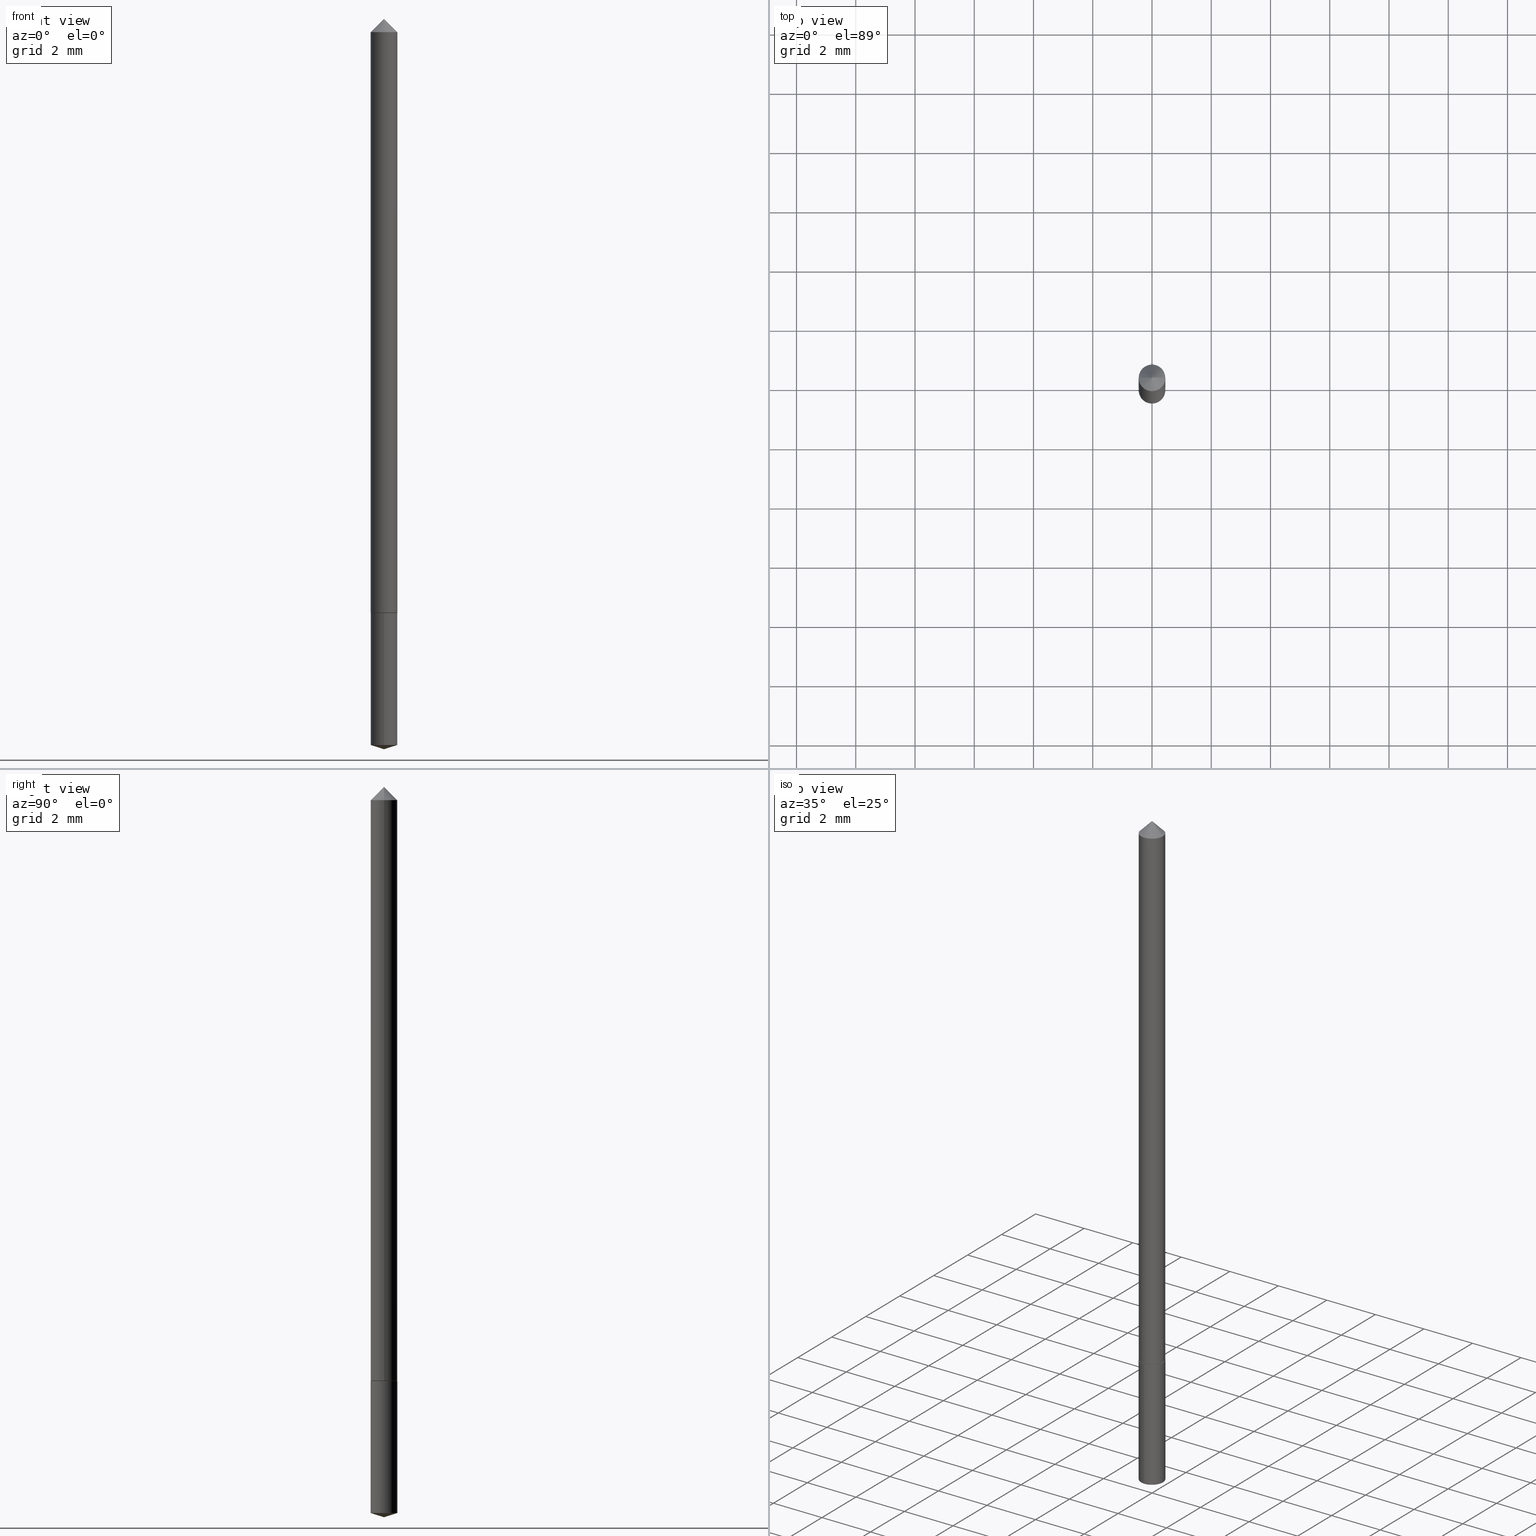
[diagram: canonical four-view strip — front | top / right | iso, engineering-drawing reading convention]
A machine part, canonical four-view strip (front | top / right | iso — engineering-drawing reading convention). The complete STEP part file that produces these views, byte-faithful:
ISO-10303-21;
HEADER;
FILE_DESCRIPTION (( 'STEP AP203' ),
    '1' );
FILE_NAME ('62017.STEP',
    '2024-04-23T04:45:31',
    ( '' ),
    ( '' ),
    'SwSTEP 2.0',
    'SolidWorks 2023',
    '' );
FILE_SCHEMA (( 'CONFIG_CONTROL_DESIGN' ));
ENDSEC;

DATA;
#1 = LINE ( 'NONE', #102, #354 ) ;
#2 = CALENDAR_DATE ( 2024, 23, 4 ) ;
#3 = CIRCLE ( 'NONE', #213, 0.01770000000000009760 ) ;
#4 = EDGE_CURVE ( 'NONE', #62, #194, #1, .T. ) ;
#5 = CC_DESIGN_SECURITY_CLASSIFICATION ( #168, ( #234 ) ) ;
#6 = MANIFOLD_SOLID_BREP ( 'Body-Move/Copy2[2]', #342 ) ;
#7 = CARTESIAN_POINT ( 'NONE',  ( 1.964200545127901750E-29, -2.804357811358814562E-15, -0.8031999999999999140 ) ) ;
#8 = DIRECTION ( 'NONE',  ( -0.7071067811865263675, 7.493145998870278430E-15, 0.7071067811865686670 ) ) ;
#9 = AXIS2_PLACEMENT_3D ( 'NONE', #83, #137, #327 ) ;
#10 = CIRCLE ( 'NONE', #155, 0.01720000000000009369 ) ;
#11 = DESIGN_CONTEXT ( 'detailed design', #93, 'design' ) ;
#12 = DIRECTION ( 'NONE',  ( -2.445436275745842788E-29, 3.491527924283732183E-15, 1.000000000000000000 ) ) ;
#13 = ADVANCED_FACE ( 'NONE', ( #46 ), #261, .F. ) ;
#14 = CARTESIAN_POINT ( 'NONE',  ( 1.964200545127901750E-29, -2.804357811358814562E-15, -0.8031999999999999140 ) ) ;
#15 = DIRECTION ( 'NONE',  ( 1.000000000000000000, 0.000000000000000000, 0.000000000000000000 ) ) ;
#16 = DIRECTION ( 'NONE',  ( 1.000000000000000000, -6.982962677686261189E-15, 0.000000000000000000 ) ) ;
#17 = CIRCLE ( 'NONE', #145, 0.01770000000000000046 ) ;
#18 = AXIS2_PLACEMENT_3D ( 'NONE', #350, #12, #211 ) ;
#19 = APPLICATION_PROTOCOL_DEFINITION ( 'international standard', 'config_control_design', 1994, #93 ) ;
#20 = CARTESIAN_POINT ( 'NONE',  ( 0.01770000000000005250, -1.235984393950472844E-16, 8.630832893158832123E-31 ) ) ;
#21 = EDGE_CURVE ( 'NONE', #116, #285, #210, .T. ) ;
#22 = PERSON_AND_ORGANIZATION ( #220, #260 ) ;
#23 = DIRECTION ( 'NONE',  ( 6.776566513254251038E-15, 0.9537169507482278208, 0.3007057995042699550 ) ) ;
#24 = EDGE_CURVE ( 'NONE', #252, #196, #82, .T. ) ;
#25 = PERSON_AND_ORGANIZATION_ROLE ( 'design_supplier' ) ;
#26 = DIRECTION ( 'NONE',  ( -2.445436275745842788E-29, 3.491527924283732183E-15, 1.000000000000000000 ) ) ;
#27 = CIRCLE ( 'NONE', #41, 0.01770000000000000392 ) ;
#28 = ORIENTED_EDGE ( 'NONE', *, *, #227, .T. ) ;
#29 = CARTESIAN_POINT ( 'NONE',  ( 1.964200545127901750E-29, -2.804357811358814562E-15, -0.8031999999999999140 ) ) ;
#30 = ORIENTED_EDGE ( 'NONE', *, *, #259, .T. ) ;
#31 = VERTEX_POINT ( 'NONE', #243 ) ;
#32 = ORIENTED_EDGE ( 'NONE', *, *, #197, .T. ) ;
#33 = AXIS2_PLACEMENT_3D ( 'NONE', #97, #291, #266 ) ;
#34 = ORIENTED_EDGE ( 'NONE', *, *, #72, .T. ) ;
#35 = DIRECTION ( 'NONE',  ( -2.445468806185136597E-29, 3.491481338843145583E-15, 1.000000000000000000 ) ) ;
#36 = PRODUCT_RELATED_PRODUCT_CATEGORY ( 'detail', '', ( #253 ) ) ;
#37 = DIRECTION ( 'NONE',  ( -2.445436275745842788E-29, 3.491527924283732183E-15, 1.000000000000000000 ) ) ;
#38 = LINE ( 'NONE', #204, #122 ) ;
#39 = CARTESIAN_POINT ( 'NONE',  ( 7.642090019328600035E-31, -1.091087918388489897E-16, -0.03125000000000020123 ) ) ;
#40 = CARTESIAN_POINT ( 'NONE',  ( 2.393421591865859803E-29, -3.417188039338808911E-15, -0.9787192114368419293 ) ) ;
#41 = AXIS2_PLACEMENT_3D ( 'NONE', #39, #188, #318 ) ;
#42 = LOCAL_TIME ( 0, 45, 31.00000000000000000, #206 ) ;
#43 = LENGTH_MEASURE_WITH_UNIT ( LENGTH_MEASURE( 0.02539999999999999897 ), #345 );
#44 = DIMENSIONAL_EXPONENTS ( 1.000000000000000000, 0.000000000000000000, 0.000000000000000000, 0.000000000000000000, 0.000000000000000000, 0.000000000000000000, 0.000000000000000000 ) ;
#45 = DIRECTION ( 'NONE',  ( 1.000000000000000000, -6.982962677686265922E-15, 0.000000000000000000 ) ) ;
#46 = FACE_OUTER_BOUND ( 'NONE', #362, .T. ) ;
#47 = PERSON_AND_ORGANIZATION_ROLE ( 'design_owner' ) ;
#48 = APPLICATION_CONTEXT ( 'configuration controlled 3d designs of mechanical parts and assemblies' ) ;
#49 = DIRECTION ( 'NONE',  ( -2.445468806185136597E-29, 3.491481338843145583E-15, 1.000000000000000000 ) ) ;
#50 = AXIS2_PLACEMENT_3D ( 'NONE', #347, #316, #175 ) ;
#51 = CARTESIAN_POINT ( 'NONE',  ( 0.01770000000000009760, -2.926210510084440245E-15, -0.8026999999999998581 ) ) ;
#52 = CC_DESIGN_PERSON_AND_ORGANIZATION_ASSIGNMENT ( #296, #104, ( #332 ) ) ;
#53 = DIRECTION ( 'NONE',  ( 1.000000000000000000, -6.982962677686261189E-15, 0.000000000000000000 ) ) ;
#54 = VERTEX_POINT ( 'NONE', #208 ) ;
#55 = DIRECTION ( 'NONE',  ( 6.982962677686265922E-15, 1.000000000000000000, -3.491527924283731788E-15 ) ) ;
#56 = VECTOR ( 'NONE', #66, 39.37007874015748143 ) ;
#57 = EDGE_LOOP ( 'NONE', ( #170, #120, #117 ) ) ;
#58 = AXIS2_PLACEMENT_3D ( 'NONE', #158, #135, #45 ) ;
#59 = CC_DESIGN_PERSON_AND_ORGANIZATION_ASSIGNMENT ( #162, #25, ( #234 ) ) ;
#60 = ORIENTED_EDGE ( 'NONE', *, *, #119, .T. ) ;
#61 = EDGE_LOOP ( 'NONE', ( #306, #34, #200, #268 ) ) ;
#62 = VERTEX_POINT ( 'NONE', #340 ) ;
#63 = DATE_AND_TIME ( #2, #294 ) ;
#64 = AXIS2_PLACEMENT_3D ( 'NONE', #298, #127, #15 ) ;
#65 = ADVANCED_FACE ( 'NONE', ( #292 ), #133, .T. ) ;
#66 = DIRECTION ( 'NONE',  ( 0.7071067811865263675, -2.468850131082035391E-15, 0.7071067811865686670 ) ) ;
#67 = SHAPE_DEFINITION_REPRESENTATION ( #91, #363 ) ;
#68 = FACE_OUTER_BOUND ( 'NONE', #358, .T. ) ;
#69 = ADVANCED_FACE ( 'NONE', ( #121 ), #203, .T. ) ;
#70 = DIRECTION ( 'NONE',  ( -2.445468806185136877E-29, 3.491481338843145188E-15, 1.000000000000000000 ) ) ;
#71 = PERSON_AND_ORGANIZATION_ROLE ( 'classification_officer' ) ;
#72 = EDGE_CURVE ( 'NONE', #153, #116, #100, .T. ) ;
#73 = CC_DESIGN_APPROVAL ( #339, ( #168 ) ) ;
#74 = CYLINDRICAL_SURFACE ( 'NONE', #290, 0.01770000000000005250 ) ;
#75 = DATE_AND_TIME ( #182, #42 ) ;
#76 = DIRECTION ( 'NONE',  ( -2.445468806185136597E-29, 3.491481338843145583E-15, 1.000000000000000000 ) ) ;
#77 = DATE_TIME_ROLE ( 'creation_date' ) ;
#78 = CIRCLE ( 'NONE', #33, 0.01770000000000009760 ) ;
#79 = LOCAL_TIME ( 0, 45, 31.00000000000000000, #244 ) ;
#80 = EDGE_CURVE ( 'NONE', #194, #54, #27, .T. ) ;
#81 = APPROVAL_STATUS ( 'not_yet_approved' ) ;
#82 = LINE ( 'NONE', #131, #56 ) ;
#83 = CARTESIAN_POINT ( 'NONE',  ( -9.386994967548581882E-28, 1.340250557840625593E-13, 38.38577874015747682 ) ) ;
#84 = ADVANCED_FACE ( 'NONE', ( #341 ), #181, .T. ) ;
#85 = CARTESIAN_POINT ( 'NONE',  ( 1.257660642295616485E-16, 0.01769999999999658305, -0.9787192114368419293 ) ) ;
#86 = AXIS2_PLACEMENT_3D ( 'NONE', #224, #305, #163 ) ;
#87 = CARTESIAN_POINT ( 'NONE',  ( 0.000000000000000000, 0.000000000000000000, 0.000000000000000000 ) ) ;
#88 = EDGE_LOOP ( 'NONE', ( #279, #360, #255, #231 ) ) ;
#89 = CARTESIAN_POINT ( 'NONE',  ( 2.393421591865859803E-29, -3.417188039338808911E-15, -0.9787192114368419293 ) ) ;
#90 = ORIENTED_EDGE ( 'NONE', *, *, #119, .F. ) ;
#91 = PRODUCT_DEFINITION_SHAPE ( 'NONE', 'NONE',  #332 ) ;
#92 = ORIENTED_EDGE ( 'NONE', *, *, #24, .F. ) ;
#93 = APPLICATION_CONTEXT ( 'configuration controlled 3d designs of mechanical parts and assemblies' ) ;
#94 = EDGE_LOOP ( 'NONE', ( #297, #230, #28, #331 ) ) ;
#95 = EDGE_CURVE ( 'NONE', #31, #54, #107, .T. ) ;
#96 = ADVANCED_FACE ( 'NONE', ( #68 ), #176, .T. ) ;
#97 = CARTESIAN_POINT ( 'NONE',  ( 1.962977810724808948E-29, -2.802612070689392664E-15, -0.8026999999999998581 ) ) ;
#98 = APPROVAL_PERSON_ORGANIZATION ( #322, #221, #132 ) ;
#99 = ADVANCED_FACE ( 'NONE', ( #150 ), #74, .T. ) ;
#100 = LINE ( 'NONE', #149, #183 ) ;
#101 = DIRECTION ( 'NONE',  ( -2.445436275745842788E-29, 3.491527924283732183E-15, 1.000000000000000000 ) ) ;
#102 = CARTESIAN_POINT ( 'NONE',  ( 0.01770000000000000392, -2.305396063994051445E-16, -0.03125000000000020123 ) ) ;
#103 = CALENDAR_DATE ( 2024, 23, 4 ) ;
#104 = PERSON_AND_ORGANIZATION_ROLE ( 'creator' ) ;
#105 = EDGE_CURVE ( 'NONE', #31, #196, #78, .T. ) ;
#106 = APPROVAL_ROLE ( '' ) ;
#107 = LINE ( 'NONE', #263, #172 ) ;
#108 = VECTOR ( 'NONE', #293, 39.37007874015748143 ) ;
#109 = CARTESIAN_POINT ( 'NONE',  ( -1.235984393950272671E-16, -0.01770000000000280377, -0.8031999999999999140 ) ) ;
#110 = DIRECTION ( 'NONE',  ( -6.659769872151625778E-15, -0.9537169507482258224, 0.3007057995042766163 ) ) ;
#111 = CARTESIAN_POINT ( 'NONE',  ( 1.962977810724808948E-29, -2.802612070689392664E-15, -0.8026999999999998581 ) ) ;
#112 = CONICAL_SURFACE ( 'NONE', #18, 124.8659371009137971, 1.265363707695888795 ) ;
#113 = CARTESIAN_POINT ( 'NONE',  ( 2.407042926216632524E-29, -3.436710935872477022E-15, -0.9842999999999999527 ) ) ;
#114 = ORIENTED_EDGE ( 'NONE', *, *, #144, .T. ) ;
#115 = EDGE_CURVE ( 'NONE', #329, #31, #38, .T. ) ;
#116 = VERTEX_POINT ( 'NONE', #238 ) ;
#117 = ORIENTED_EDGE ( 'NONE', *, *, #80, .T. ) ;
#118 = EDGE_LOOP ( 'NONE', ( #169, #330, #309 ) ) ;
#119 = EDGE_CURVE ( 'NONE', #256, #237, #356, .T. ) ;
#120 = ORIENTED_EDGE ( 'NONE', *, *, #4, .T. ) ;
#121 = FACE_OUTER_BOUND ( 'NONE', #88, .T. ) ;
#122 = VECTOR ( 'NONE', #8, 39.37007874015748143 ) ;
#123 = PERSON_AND_ORGANIZATION ( #220, #260 ) ;
#124 = DIRECTION ( 'NONE',  ( -6.982962677686265133E-15, -1.000000000000000000, 0.000000000000000000 ) ) ;
#125 = DIRECTION ( 'NONE',  ( 1.000000000000000000, -6.982962677686266711E-15, 4.876176775795935793E-29 ) ) ;
#126 = ADVANCED_FACE ( 'NONE', ( #217 ), #167, .T. ) ;
#127 = DIRECTION ( 'NONE',  ( 0.000000000000000000, 0.000000000000000000, 1.000000000000000000 ) ) ;
#128 = VECTOR ( 'NONE', #136, 39.37007874015748143 ) ;
#129 = APPLICATION_PROTOCOL_DEFINITION ( 'international standard', 'config_control_design', 1994, #48 ) ;
#130 = MANIFOLD_SOLID_BREP ( 'Body-Move/Copy2[1]', #361 ) ;
#131 = CARTESIAN_POINT ( 'NONE',  ( 0.01770000000000009760, -2.926210510084440245E-15, -0.8026999999999998581 ) ) ;
#132 = APPROVAL_ROLE ( '' ) ;
#133 = CONICAL_SURFACE ( 'NONE', #50, 0.01770000000000000392, 0.7853981633974452814 ) ;
#134 = FACE_OUTER_BOUND ( 'NONE', #333, .T. ) ;
#135 = DIRECTION ( 'NONE',  ( -2.445468806185136597E-29, 3.491481338843145583E-15, 1.000000000000000000 ) ) ;
#136 = DIRECTION ( 'NONE',  ( -2.445468806185136877E-29, 3.491481338843145188E-15, 1.000000000000000000 ) ) ;
#137 = DIRECTION ( 'NONE',  ( -2.445436275745842788E-29, 3.491527924283732183E-15, 1.000000000000000000 ) ) ;
#138 = DIRECTION ( 'NONE',  ( -6.982962677686265133E-15, -1.000000000000000000, 0.000000000000000000 ) ) ;
#139 = AXIS2_PLACEMENT_3D ( 'NONE', #14, #235, #209 ) ;
#140 =( GEOMETRIC_REPRESENTATION_CONTEXT ( 3 ) GLOBAL_UNCERTAINTY_ASSIGNED_CONTEXT ( ( #359 ) ) GLOBAL_UNIT_ASSIGNED_CONTEXT ( ( #154, #320, #264 ) ) REPRESENTATION_CONTEXT ( 'NONE', 'WORKASPACE' ) );
#141 = EDGE_LOOP ( 'NONE', ( #226, #201, #146, #92 ) ) ;
#142 = DIRECTION ( 'NONE',  ( -2.445468806185136597E-29, 3.491481338843145583E-15, 1.000000000000000000 ) ) ;
#143 = ORIENTED_EDGE ( 'NONE', *, *, #21, .T. ) ;
#144 = EDGE_CURVE ( 'NONE', #196, #31, #3, .T. ) ;
#145 = AXIS2_PLACEMENT_3D ( 'NONE', #89, #195, #223 ) ;
#146 = ORIENTED_EDGE ( 'NONE', *, *, #144, .F. ) ;
#147 = ORIENTED_EDGE ( 'NONE', *, *, #165, .F. ) ;
#148 = PERSON_AND_ORGANIZATION ( #220, #260 ) ;
#149 = CARTESIAN_POINT ( 'NONE',  ( 1.257660642295573590E-16, 0.01769999999999719714, -0.8031999999999999140 ) ) ;
#150 = FACE_OUTER_BOUND ( 'NONE', #94, .T. ) ;
#151 = VECTOR ( 'NONE', #110, 39.37007874015748143 ) ;
#152 = CIRCLE ( 'NONE', #265, 0.01770000000000000046 ) ;
#153 = VERTEX_POINT ( 'NONE', #85 ) ;
#154 =( CONVERSION_BASED_UNIT ( 'INCH', #43 ) LENGTH_UNIT ( ) NAMED_UNIT ( #44 ) );
#155 = AXIS2_PLACEMENT_3D ( 'NONE', #319, #76, #295 ) ;
#156 = ADVANCED_FACE ( 'NONE', ( #192 ), #300, .T. ) ;
#157 = CARTESIAN_POINT ( 'NONE',  ( 0.000000000000000000, 0.000000000000000000, 0.000000000000000000 ) ) ;
#158 = CARTESIAN_POINT ( 'NONE',  ( 7.642090019328600035E-31, -1.091087918388489897E-16, -0.03125000000000020123 ) ) ;
#159 = DIRECTION ( 'NONE',  ( 1.000000000000000000, -6.982962677686265922E-15, 4.876176775795935793E-29 ) ) ;
#160 = CARTESIAN_POINT ( 'NONE',  ( 1.964200545127901750E-29, -2.804357811358814562E-15, -0.8031999999999999140 ) ) ;
#161 = DIRECTION ( 'NONE',  ( 2.445436275745842508E-29, -3.491527924283731788E-15, -1.000000000000000000 ) ) ;
#162 = PERSON_AND_ORGANIZATION ( #220, #260 ) ;
#163 = DIRECTION ( 'NONE',  ( -1.000000000000000000, 6.982962677686265922E-15, 0.000000000000000000 ) ) ;
#164 = ORIENTED_EDGE ( 'NONE', *, *, #95, .T. ) ;
#165 = EDGE_CURVE ( 'NONE', #256, #153, #299, .T. ) ;
#166 = CARTESIAN_POINT ( 'NONE',  ( 1.964200545127901750E-29, -2.804357811358814562E-15, -0.8031999999999999140 ) ) ;
#167 = CONICAL_SURFACE ( 'NONE', #348, 0.01770000000000009760, 0.7853981633974184140 ) ;
#168 = SECURITY_CLASSIFICATION ( '', '', #248 ) ;
#169 = ORIENTED_EDGE ( 'NONE', *, *, #4, .F. ) ;
#170 = ORIENTED_EDGE ( 'NONE', *, *, #287, .F. ) ;
#171 = ORIENTED_EDGE ( 'NONE', *, *, #197, .F. ) ;
#172 = VECTOR ( 'NONE', #70, 39.37007874015748143 ) ;
#173 = CIRCLE ( 'NONE', #58, 0.01770000000000000392 ) ;
#174 = ORIENTED_EDGE ( 'NONE', *, *, #165, .T. ) ;
#175 = DIRECTION ( 'NONE',  ( -1.000000000000000000, 6.982962677686265922E-15, 0.000000000000000000 ) ) ;
#176 = CYLINDRICAL_SURFACE ( 'NONE', #249, 0.01770000000000000046 ) ;
#177 = COORDINATED_UNIVERSAL_TIME_OFFSET ( 5, 0, .BEHIND. ) ;
#178 = EDGE_CURVE ( 'NONE', #237, #285, #324, .T. ) ;
#179 = DIRECTION ( 'NONE',  ( -2.445468806185136597E-29, 3.491481338843145583E-15, 1.000000000000000000 ) ) ;
#180 = VECTOR ( 'NONE', #353, 39.37007874015748143 ) ;
#181 = CYLINDRICAL_SURFACE ( 'NONE', #191, 0.01770000000000000046 ) ;
#182 = CALENDAR_DATE ( 2024, 23, 4 ) ;
#183 = VECTOR ( 'NONE', #338, 39.37007874015748143 ) ;
#184 = LINE ( 'NONE', #267, #108 ) ;
#185 = CIRCLE ( 'NONE', #271, 0.01720000000000009369 ) ;
#186 = ADVANCED_FACE ( 'NONE', ( #272 ), #251, .F. ) ;
#187 = DIRECTION ( 'NONE',  ( -6.982962677686265133E-15, -1.000000000000000000, 0.000000000000000000 ) ) ;
#188 = DIRECTION ( 'NONE',  ( -2.445468806185136597E-29, 3.491481338843145583E-15, 1.000000000000000000 ) ) ;
#189 = DIRECTION ( 'NONE',  ( -2.445436275745842788E-29, 3.491527924283732183E-15, 1.000000000000000000 ) ) ;
#190 = LINE ( 'NONE', #20, #128 ) ;
#191 = AXIS2_PLACEMENT_3D ( 'NONE', #207, #101, #315 ) ;
#192 = FACE_OUTER_BOUND ( 'NONE', #118, .T. ) ;
#193 = DIRECTION ( 'NONE',  ( -2.445468806185136597E-29, 3.491481338843145583E-15, 1.000000000000000000 ) ) ;
#194 = VERTEX_POINT ( 'NONE', #328 ) ;
#195 = DIRECTION ( 'NONE',  ( -2.445436275745842788E-29, 3.491527924283732183E-15, 1.000000000000000000 ) ) ;
#196 = VERTEX_POINT ( 'NONE', #51 ) ;
#197 = EDGE_CURVE ( 'NONE', #153, #237, #17, .T. ) ;
#198 = AXIS2_PLACEMENT_3D ( 'NONE', #160, #161, #55 ) ;
#199 = LOCAL_TIME ( 0, 45, 31.00000000000000000, #232 ) ;
#200 = ORIENTED_EDGE ( 'NONE', *, *, #259, .F. ) ;
#201 = ORIENTED_EDGE ( 'NONE', *, *, #115, .T. ) ;
#202 = ORIENTED_EDGE ( 'NONE', *, *, #178, .T. ) ;
#203 = CONICAL_SURFACE ( 'NONE', #254, 0.01770000000000009760, 0.7853981633974184140 ) ;
#204 = CARTESIAN_POINT ( 'NONE',  ( -0.01770000000000009760, -2.676846006459854189E-15, -0.8026999999999998581 ) ) ;
#205 = DATE_AND_TIME ( #335, #199 ) ;
#206 = COORDINATED_UNIVERSAL_TIME_OFFSET ( 5, 0, .BEHIND. ) ;
#207 = CARTESIAN_POINT ( 'NONE',  ( 1.964200545127901750E-29, -2.804357811358814562E-15, -0.8031999999999999140 ) ) ;
#208 = CARTESIAN_POINT ( 'NONE',  ( -0.01770000000000000392, -1.330094367034580829E-15, -0.03125000000000020123 ) ) ;
#209 = DIRECTION ( 'NONE',  ( -6.982962677686265133E-15, -1.000000000000000000, 0.000000000000000000 ) ) ;
#210 = CIRCLE ( 'NONE', #139, 0.01770000000000000046 ) ;
#211 = DIRECTION ( 'NONE',  ( -6.982962677686265922E-15, -1.000000000000000000, 3.500519750498739931E-15 ) ) ;
#212 = COORDINATED_UNIVERSAL_TIME_OFFSET ( 5, 0, .BEHIND. ) ;
#213 = AXIS2_PLACEMENT_3D ( 'NONE', #111, #247, #53 ) ;
#214 = AXIS2_PLACEMENT_3D ( 'NONE', #40, #189, #187 ) ;
#215 = DIRECTION ( 'NONE',  ( 0.7071067811865453523, -7.319954787623248157E-15, -0.7071067811865496822 ) ) ;
#216 = MECHANICAL_CONTEXT ( 'NONE', #48, 'mechanical' ) ;
#217 = FACE_OUTER_BOUND ( 'NONE', #141, .T. ) ;
#218 = APPROVAL_DATE_TIME ( #304, #221 ) ;
#219 = CARTESIAN_POINT ( 'NONE',  ( 1.962977810724808948E-29, -2.802612070689392664E-15, -0.8026999999999998581 ) ) ;
#220 = PERSON ( 'UNSPECIFIED', 'UNSPECIFIED', 'UNSPECIFIED', ('UNSPECIFIED'), ('UNSPECIFIED'), ('UNSPECIFIED') ) ;
#221 = APPROVAL ( #81, 'UNSPECIFIED' ) ;
#222 = CIRCLE ( 'NONE', #214, 0.01770000000000000046 ) ;
#223 = DIRECTION ( 'NONE',  ( -6.982962677686265133E-15, -1.000000000000000000, 0.000000000000000000 ) ) ;
#224 = CARTESIAN_POINT ( 'NONE',  ( 7.642090019328600035E-31, -1.091087918388489897E-16, -0.03125000000000020123 ) ) ;
#225 = ADVANCED_FACE ( 'NONE', ( #274 ), #326, .T. ) ;
#226 = ORIENTED_EDGE ( 'NONE', *, *, #262, .T. ) ;
#227 = EDGE_CURVE ( 'NONE', #196, #194, #190, .T. ) ;
#228 = ORIENTED_EDGE ( 'NONE', *, *, #310, .F. ) ;
#229 = EDGE_LOOP ( 'NONE', ( #30, #143 ) ) ;
#230 = ORIENTED_EDGE ( 'NONE', *, *, #105, .T. ) ;
#231 = ORIENTED_EDGE ( 'NONE', *, *, #105, .F. ) ;
#232 = COORDINATED_UNIVERSAL_TIME_OFFSET ( 5, 0, .BEHIND. ) ;
#233 = CC_DESIGN_PERSON_AND_ORGANIZATION_ASSIGNMENT ( #22, #352, ( #234 ) ) ;
#234 = PRODUCT_DEFINITION_FORMATION_WITH_SPECIFIED_SOURCE ( 'ANY', '', #253, .NOT_KNOWN. ) ;
#235 = DIRECTION ( 'NONE',  ( -2.445436275745842788E-29, 3.491527924283732183E-15, 1.000000000000000000 ) ) ;
#236 = APPROVAL_STATUS ( 'not_yet_approved' ) ;
#237 = VERTEX_POINT ( 'NONE', #246 ) ;
#238 = CARTESIAN_POINT ( 'NONE',  ( 1.257660642295616978E-16, 0.01769999999999719714, -0.8031999999999999140 ) ) ;
#239 = APPROVAL_DATE_TIME ( #75, #355 ) ;
#240 = PERSON_AND_ORGANIZATION ( #220, #260 ) ;
#241 = PERSON_AND_ORGANIZATION ( #220, #260 ) ;
#242 = ADVANCED_FACE ( 'NONE', ( #351 ), #278, .T. ) ;
#243 = CARTESIAN_POINT ( 'NONE',  ( -0.01770000000000009760, -2.676846006459854189E-15, -0.8026999999999998581 ) ) ;
#244 = COORDINATED_UNIVERSAL_TIME_OFFSET ( 5, 0, .BEHIND. ) ;
#245 = CARTESIAN_POINT ( 'NONE',  ( 2.407042926216632524E-29, -3.436710935872477022E-15, -0.9842999999999999527 ) ) ;
#246 = CARTESIAN_POINT ( 'NONE',  ( -1.235984393950229777E-16, -0.01770000000000341786, -0.9787192114368419293 ) ) ;
#247 = DIRECTION ( 'NONE',  ( -2.445468806185136597E-29, 3.491481338843145583E-15, 1.000000000000000000 ) ) ;
#248 = SECURITY_CLASSIFICATION_LEVEL ( 'unclassified' ) ;
#249 = AXIS2_PLACEMENT_3D ( 'NONE', #288, #37, #124 ) ;
#250 = CC_DESIGN_APPROVAL ( #355, ( #332 ) ) ;
#251 = PLANE ( 'NONE',  #198 ) ;
#252 = VERTEX_POINT ( 'NONE', #275 ) ;
#253 = PRODUCT ( '62017', '62017', '', ( #216 ) ) ;
#254 = AXIS2_PLACEMENT_3D ( 'NONE', #334, #35, #323 ) ;
#255 = ORIENTED_EDGE ( 'NONE', *, *, #24, .T. ) ;
#256 = VERTEX_POINT ( 'NONE', #245 ) ;
#257 = APPROVAL_ROLE ( '' ) ;
#258 = DIRECTION ( 'NONE',  ( -2.438088387897960049E-29, 3.491481338843145188E-15, 1.000000000000000000 ) ) ;
#259 = EDGE_CURVE ( 'NONE', #285, #116, #152, .T. ) ;
#260 = ORGANIZATION ( 'UNSPECIFIED', 'UNSPECIFIED', '' ) ;
#261 = PLANE ( 'NONE',  #336 ) ;
#262 = EDGE_CURVE ( 'NONE', #252, #329, #185, .T. ) ;
#263 = CARTESIAN_POINT ( 'NONE',  ( -0.01770000000000005250, 1.257660642295381059E-16, -8.706515109751208922E-31 ) ) ;
#264 =( NAMED_UNIT ( * ) SI_UNIT ( $, .STERADIAN. ) SOLID_ANGLE_UNIT ( ) );
#265 = AXIS2_PLACEMENT_3D ( 'NONE', #166, #26, #138 ) ;
#266 = DIRECTION ( 'NONE',  ( 1.000000000000000000, -6.982962677686261189E-15, 0.000000000000000000 ) ) ;
#267 = CARTESIAN_POINT ( 'NONE',  ( -0.01770000000000000392, 1.448964755619795269E-17, -0.03125000000000020123 ) ) ;
#268 = ORIENTED_EDGE ( 'NONE', *, *, #178, .F. ) ;
#269 = ADVANCED_FACE ( 'NONE', ( #134 ), #112, .T. ) ;
#270 = CARTESIAN_POINT ( 'NONE',  ( -1.235984393950272671E-16, -0.01770000000000280377, -0.8031999999999999140 ) ) ;
#271 = AXIS2_PLACEMENT_3D ( 'NONE', #29, #142, #16 ) ;
#272 = FACE_OUTER_BOUND ( 'NONE', #229, .T. ) ;
#273 = CC_DESIGN_DATE_AND_TIME_ASSIGNMENT ( #321, #77, ( #332 ) ) ;
#274 = FACE_OUTER_BOUND ( 'NONE', #276, .T. ) ;
#275 = CARTESIAN_POINT ( 'NONE',  ( 0.01720000000000009369, -2.924464769415018741E-15, -0.8031999999999999140 ) ) ;
#276 = EDGE_LOOP ( 'NONE', ( #147, #60, #171 ) ) ;
#277 = CC_DESIGN_APPROVAL ( #221, ( #234 ) ) ;
#278 = CYLINDRICAL_SURFACE ( 'NONE', #337, 0.01770000000000005250 ) ;
#279 = ORIENTED_EDGE ( 'NONE', *, *, #115, .F. ) ;
#280 = CC_DESIGN_PERSON_AND_ORGANIZATION_ASSIGNMENT ( #148, #71, ( #168 ) ) ;
#281 = ORIENTED_EDGE ( 'NONE', *, *, #227, .F. ) ;
#282 = DATE_TIME_ROLE ( 'classification_date' ) ;
#283 = VECTOR ( 'NONE', #23, 39.37007874015748854 ) ;
#284 = EDGE_CURVE ( 'NONE', #54, #194, #173, .T. ) ;
#285 = VERTEX_POINT ( 'NONE', #270 ) ;
#286 = ORIENTED_EDGE ( 'NONE', *, *, #80, .F. ) ;
#287 = EDGE_CURVE ( 'NONE', #62, #54, #184, .T. ) ;
#288 = CARTESIAN_POINT ( 'NONE',  ( 1.964200545127901750E-29, -2.804357811358814562E-15, -0.8031999999999999140 ) ) ;
#289 = APPROVAL_DATE_TIME ( #205, #339 ) ;
#290 = AXIS2_PLACEMENT_3D ( 'NONE', #157, #179, #125 ) ;
#291 = DIRECTION ( 'NONE',  ( -2.445468806185136597E-29, 3.491481338843145583E-15, 1.000000000000000000 ) ) ;
#292 = FACE_OUTER_BOUND ( 'NONE', #57, .T. ) ;
#293 = DIRECTION ( 'NONE',  ( -0.7071067811865453523, 2.468850131082234184E-15, -0.7071067811865496822 ) ) ;
#294 = LOCAL_TIME ( 0, 45, 31.00000000000000000, #177 ) ;
#295 = DIRECTION ( 'NONE',  ( 1.000000000000000000, -6.982962677686261189E-15, 0.000000000000000000 ) ) ;
#296 = PERSON_AND_ORGANIZATION ( #220, #260 ) ;
#297 = ORIENTED_EDGE ( 'NONE', *, *, #95, .F. ) ;
#298 = CARTESIAN_POINT ( 'NONE',  ( 0.000000000000000000, 0.000000000000000000, 0.000000000000000000 ) ) ;
#299 = LINE ( 'NONE', #301, #283 ) ;
#300 = CONICAL_SURFACE ( 'NONE', #86, 0.01770000000000000392, 0.7853981633974452814 ) ;
#301 = CARTESIAN_POINT ( 'NONE',  ( 2.407095641345622752E-29, -3.436636101020719037E-15, -0.9842999999999999527 ) ) ;
#302 = DIRECTION ( 'NONE',  ( 1.000000000000000000, -6.982962677686266711E-15, 4.876176775795935793E-29 ) ) ;
#303 = ORIENTED_EDGE ( 'NONE', *, *, #21, .F. ) ;
#304 = DATE_AND_TIME ( #349, #79 ) ;
#305 = DIRECTION ( 'NONE',  ( 2.445468806185136597E-29, -3.491481338843145583E-15, -1.000000000000000000 ) ) ;
#306 = ORIENTED_EDGE ( 'NONE', *, *, #310, .T. ) ;
#307 = EDGE_CURVE ( 'NONE', #329, #252, #10, .T. ) ;
#308 = APPROVAL_PERSON_ORGANIZATION ( #123, #339, #257 ) ;
#309 = ORIENTED_EDGE ( 'NONE', *, *, #284, .T. ) ;
#310 = EDGE_CURVE ( 'NONE', #237, #153, #222, .T. ) ;
#311 = CC_DESIGN_PERSON_AND_ORGANIZATION_ASSIGNMENT ( #240, #47, ( #253 ) ) ;
#312 = ORIENTED_EDGE ( 'NONE', *, *, #262, .F. ) ;
#313 = APPROVAL_PERSON_ORGANIZATION ( #241, #355, #106 ) ;
#314 = ORIENTED_EDGE ( 'NONE', *, *, #72, .F. ) ;
#315 = DIRECTION ( 'NONE',  ( -6.982962677686265133E-15, -1.000000000000000000, 0.000000000000000000 ) ) ;
#316 = DIRECTION ( 'NONE',  ( 2.445468806185136597E-29, -3.491481338843145583E-15, -1.000000000000000000 ) ) ;
#317 = LOCAL_TIME ( 0, 45, 31.00000000000000000, #212 ) ;
#318 = DIRECTION ( 'NONE',  ( 1.000000000000000000, -6.982962677686265922E-15, 0.000000000000000000 ) ) ;
#319 = CARTESIAN_POINT ( 'NONE',  ( 1.964200545127901750E-29, -2.804357811358814562E-15, -0.8031999999999999140 ) ) ;
#320 =( NAMED_UNIT ( * ) PLANE_ANGLE_UNIT ( ) SI_UNIT ( $, .RADIAN. ) );
#321 = DATE_AND_TIME ( #103, #317 ) ;
#322 = PERSON_AND_ORGANIZATION ( #220, #260 ) ;
#323 = DIRECTION ( 'NONE',  ( 1.000000000000000000, -6.982962677686261189E-15, 0.000000000000000000 ) ) ;
#324 = LINE ( 'NONE', #109, #180 ) ;
#325 = DIRECTION ( 'NONE',  ( 1.000000000000000000, -6.982962677686261189E-15, 0.000000000000000000 ) ) ;
#326 = CONICAL_SURFACE ( 'NONE', #9, 124.8659371009137971, 1.265363707695888795 ) ;
#327 = DIRECTION ( 'NONE',  ( -6.982962677686265922E-15, -1.000000000000000000, 3.500519750498739931E-15 ) ) ;
#328 = CARTESIAN_POINT ( 'NONE',  ( 0.01770000000000000392, -2.327072312338959414E-16, -0.03125000000000020123 ) ) ;
#329 = VERTEX_POINT ( 'NONE', #343 ) ;
#330 = ORIENTED_EDGE ( 'NONE', *, *, #287, .T. ) ;
#331 = ORIENTED_EDGE ( 'NONE', *, *, #284, .F. ) ;
#332 = PRODUCT_DEFINITION ( 'UNKNOWN', '', #234, #11 ) ;
#333 = EDGE_LOOP ( 'NONE', ( #90, #174, #228 ) ) ;
#334 = CARTESIAN_POINT ( 'NONE',  ( 1.962977810724808948E-29, -2.802612070689392664E-15, -0.8026999999999998581 ) ) ;
#335 = CALENDAR_DATE ( 2024, 23, 4 ) ;
#336 = AXIS2_PLACEMENT_3D ( 'NONE', #7, #258, #159 ) ;
#337 = AXIS2_PLACEMENT_3D ( 'NONE', #87, #193, #302 ) ;
#338 = DIRECTION ( 'NONE',  ( -2.445436275745842788E-29, 3.491527924283731788E-15, 1.000000000000000000 ) ) ;
#339 = APPROVAL ( #236, 'UNSPECIFIED' ) ;
#340 = CARTESIAN_POINT ( 'NONE',  ( 3.313610232380880942E-31, -4.730957214132492224E-17, -0.01355000000000008455 ) ) ;
#341 = FACE_OUTER_BOUND ( 'NONE', #61, .T. ) ;
#342 = CLOSED_SHELL ( 'NONE', ( #65, #242, #126, #13, #69, #99, #156 ) ) ;
#343 = CARTESIAN_POINT ( 'NONE',  ( -0.01720000000000009369, -2.679495233633965390E-15, -0.8031999999999999140 ) ) ;
#344 = CC_DESIGN_DATE_AND_TIME_ASSIGNMENT ( #63, #282, ( #168 ) ) ;
#345 =( LENGTH_UNIT ( ) NAMED_UNIT ( * ) SI_UNIT ( $, .METRE. ) );
#346 = APPROVAL_STATUS ( 'not_yet_approved' ) ;
#347 = CARTESIAN_POINT ( 'NONE',  ( 7.642090019328600035E-31, -1.091087918388489897E-16, -0.03125000000000020123 ) ) ;
#348 = AXIS2_PLACEMENT_3D ( 'NONE', #219, #49, #325 ) ;
#349 = CALENDAR_DATE ( 2024, 23, 4 ) ;
#350 = CARTESIAN_POINT ( 'NONE',  ( -9.386994967548581882E-28, 1.340250557840625593E-13, 38.38577874015747682 ) ) ;
#351 = FACE_OUTER_BOUND ( 'NONE', #364, .T. ) ;
#352 = PERSON_AND_ORGANIZATION_ROLE ( 'creator' ) ;
#353 = DIRECTION ( 'NONE',  ( -2.445436275745842788E-29, 3.491527924283731788E-15, 1.000000000000000000 ) ) ;
#354 = VECTOR ( 'NONE', #215, 39.37007874015748143 ) ;
#355 = APPROVAL ( #346, 'UNSPECIFIED' ) ;
#356 = LINE ( 'NONE', #113, #151 ) ;
#357 = ORIENTED_EDGE ( 'NONE', *, *, #307, .F. ) ;
#358 = EDGE_LOOP ( 'NONE', ( #314, #32, #202, #303 ) ) ;
#359 = UNCERTAINTY_MEASURE_WITH_UNIT (LENGTH_MEASURE( 1.000000000000000082E-05 ), #154, 'distance_accuracy_value', 'NONE');
#360 = ORIENTED_EDGE ( 'NONE', *, *, #307, .T. ) ;
#361 = CLOSED_SHELL ( 'NONE', ( #84, #269, #225, #96, #186 ) ) ;
#362 = EDGE_LOOP ( 'NONE', ( #312, #357 ) ) ;
#363 = ADVANCED_BREP_SHAPE_REPRESENTATION ( '62017', ( #130, #6, #64 ), #140 ) ;
#364 = EDGE_LOOP ( 'NONE', ( #114, #164, #286, #281 ) ) ;
ENDSEC;
END-ISO-10303-21;
